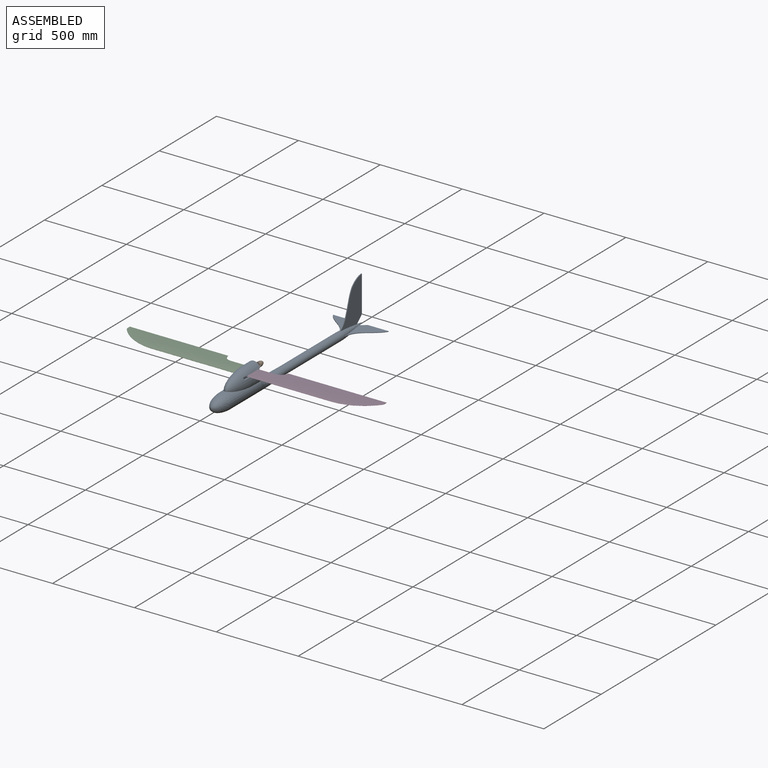
[diagram: assembled view]
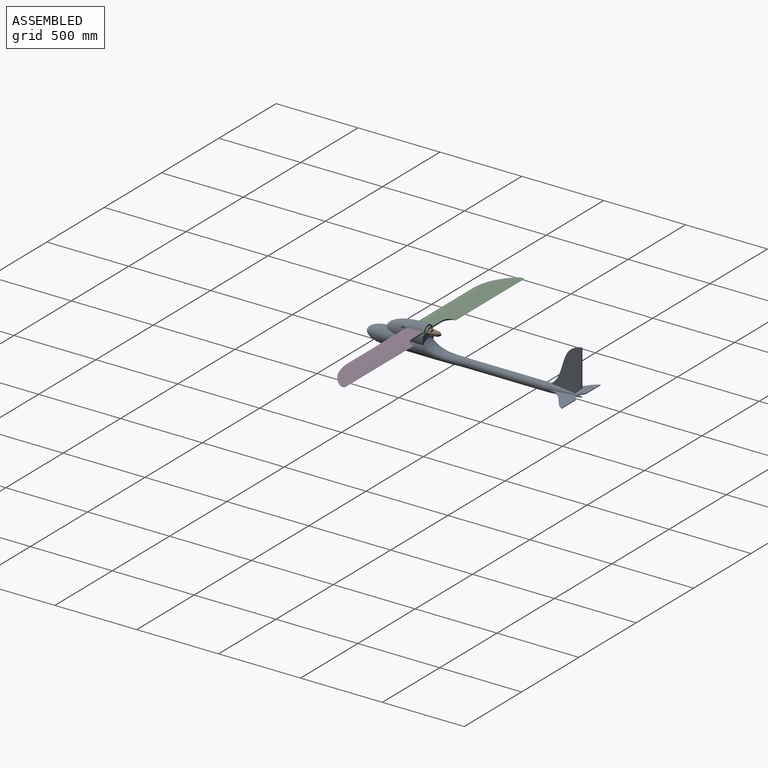
[diagram: assembled view, second angle]
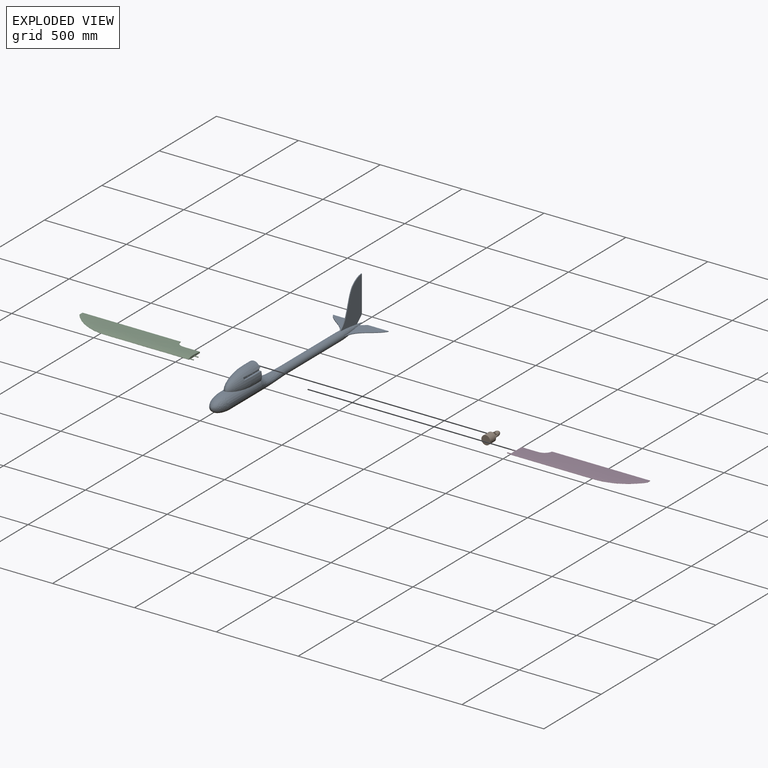
[diagram: exploded view]
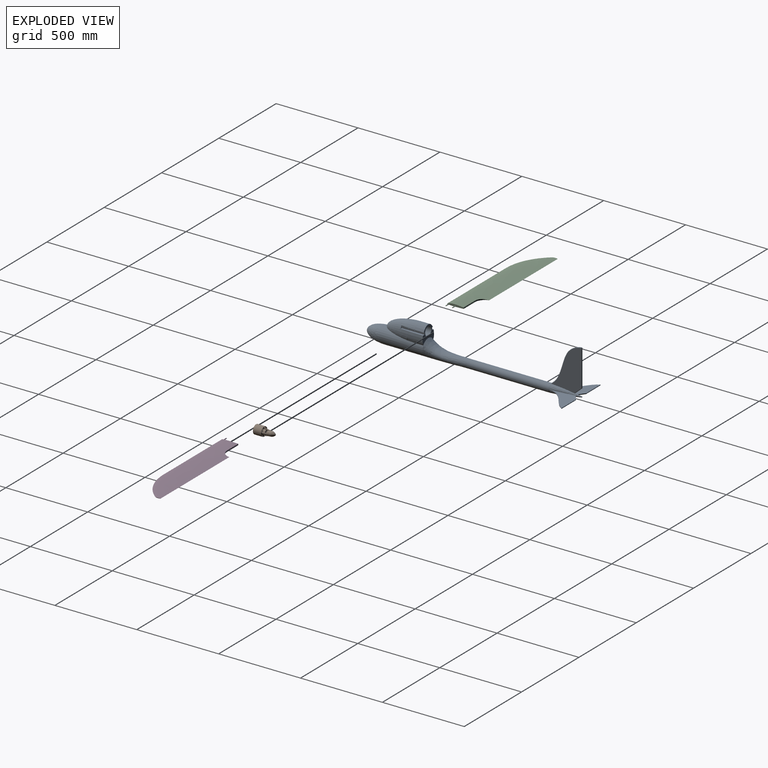
[diagram: exploded view, second angle]
ASSEMBLY  parts=4 mates=4
PART A: 50 faces, bbox 342.7x1315.6x302.5 mm
  f0: bspline ~188.33x49.97mm, area 17044.4mm2, adj f6,f10,f11,f12,f13,f14,f15,f16
  f1: extruded ~50x30mm, area 1519.5mm2, adj f3,f20,f22,f36
  f2: extruded ~80x50mm, area 5265.6mm2, adj f3,f4,f20,f31,f35
  f3: plane 103.03x103.03mm, normal (0,1,0), area 4074.6mm2, adj f1,f2,f21,f22,f23,f26,f27,f28
  f4: bspline ~200x75mm, area 14664.9mm2, adj f2,f20,f21,f25,f30,f31,f32,f33
  f5: plane 1.61x1.61mm, normal (0,1,0), area 2mm2, adj f6
  f6: bspline ~5.56x5.56mm, area 35.2mm2, adj f0,f5
  f7: cylinder r=2.5mm len=222.05mm, axis (0,0,-1), area 1744mm2, adj f8,f9,f13,f14
  f8: sphere r=2.5mm, area 17.9mm2, adj f7,f11,f12
  f9: sphere r=2.5mm, area 0mm2, adj f7,f10
  f10: cylinder r=2.5mm len=44.15mm, axis (0,-0.75,-0.66), area 437.9mm2, adj f0,f9,f13,f14,f15,f16
  f11: bspline ~253.16x194.75mm, area 1286.8mm2, adj f0,f8,f12,f13
  f12: bspline ~253.16x194.75mm, area 1286.8mm2, adj f0,f8,f11,f14
  f13: plane 261.99x184.11mm, normal (-1,0,0), area 28330.3mm2, adj f0,f7,f10,f11,f16
  f14: plane 261.99x184.11mm, normal (1,0,0), area 28330.3mm2, adj f0,f7,f10,f12,f15
  f15: plane 4.22x2.07mm, normal (0,0.99,-0.17), area 2.3mm2, adj f0,f10,f14
  f16: plane 4.22x2.08mm, normal (0,0.99,-0.17), area 2.3mm2, adj f0,f10,f13
  f17: cylinder r=50mm len=250mm, axis (0,-1,0), area 62831.9mm2, adj f18,f19,f22,f23,f25,f26,f27
  f18: revolved ~120x99.83mm, area 31513.3mm2, adj f17
  f19: revolved ~200x50mm, area 3509.7mm2, adj f17,f20,f22
  f20: bspline ~200x75mm, area 14664.6mm2, adj f1,f2,f4,f19,f34,f35,f36,f37
  f21: extruded ~50x30mm, area 1519.5mm2, adj f3,f4,f26,f32
  f22: cylinder r=50mm len=50mm, axis (0,-1,0), area 1309mm2, adj f1,f3,f17,f19
  f23: bspline ~250x100mm, area 26035.5mm2, adj f3,f17,f24,f27
  f24: cylinder r=25mm len=500mm, axis (0,-1,0), area 78539.7mm2, adj f0,f23,f27
  f25: revolved ~200x50mm, area 3510.7mm2, adj f4,f17,f26
  f26: cylinder r=50mm len=50mm, axis (0,-1,0), area 1309mm2, adj f3,f17,f21,f25
  f27: bspline ~250x100mm, area 26035.5mm2, adj f3,f17,f23,f24
  f28: cylinder r=27.5mm len=55mm, axis (0,1,0), area 6911.5mm2, adj f3,f29
  f29: plane 55x55mm, normal (0,1,0), area 2375.8mm2, adj f28
  f30: plane 140x15mm, normal (-1,0,0), area 2060.7mm2, adj f3,f4,f31,f32,f33,f38,f39
  f31: plane 139.78x6.73mm, normal (0,0,-1), area 768.4mm2, adj f2,f3,f4,f30
  f32: plane 140x12.54mm, normal (0,0,1), area 1598mm2, adj f3,f4,f21,f30,f33
  f33: plane 14.93x6.73mm, normal (0,1,0), area 55.2mm2, adj f4,f30,f32
  f34: plane 140x15mm, normal (1,0,0), area 2060.7mm2, adj f3,f20,f35,f36,f37,f38,f39
  f35: plane 139.78x6.73mm, normal (0,0,-1), area 768.4mm2, adj f2,f3,f20,f34
  f36: plane 140x12.54mm, normal (0,0,1), area 1598mm2, adj f1,f3,f20,f34,f37
  f37: plane 14.93x6.73mm, normal (0,1,0), area 55.2mm2, adj f20,f34,f36
  f38: cylinder r=2.5mm len=66.6mm, axis (1,0,0), area 1046.2mm2, adj f30,f34
  f39: cylinder r=2.5mm len=66.6mm, axis (1,0,0), area 1046.2mm2, adj f30,f34
  f40: plane 36.43x27.24mm, normal (0.6,0.8,0), area 179.3mm2, adj f0,f41,f43,f44
  f41: plane 125.92x4mm, normal (0,1,0), area 503.7mm2, adj f40,f42,f43,f44
  f42: extruded ~174x145.44mm, area 934mm2, adj f0,f41,f43,f44
  f43: plane 181.74x162.02mm, normal (0,0,1), area 11427.8mm2, adj f0,f40,f41,f42
  f44: plane 181.74x162.02mm, normal (0,0,-1), area 11427.8mm2, adj f0,f40,f41,f42
  f45: plane 36.27x27.07mm, normal (-0.6,0.8,0), area 179.3mm2, adj f0,f46,f48,f49
  f46: plane 125.92x4mm, normal (0,1,0), area 503.7mm2, adj f45,f47,f48,f49
  f47: extruded ~174x145.44mm, area 934mm2, adj f0,f46,f48,f49
  f48: plane 181.74x162.02mm, normal (0,0,1), area 11427.8mm2, adj f0,f45,f46,f47
  f49: plane 181.9x162.18mm, normal (0,0,-1), area 11427.8mm2, adj f0,f45,f46,f47
PART B: 70 faces, bbox 55.3x120.3x55.3 mm
  f0: plane 25.43x25.43mm, normal (0,-1,0), area 151.9mm2, adj f4,f11,f27,f36,f65,f66,f67,f68
  f1: plane 25.43x25.43mm, normal (0,-1,0), area 151.9mm2, adj f5,f11,f28,f45,f60,f61,f62,f63
  f2: plane 25.43x25.43mm, normal (0,-1,0), area 151.9mm2, adj f11,f14,f21,f44,f55,f56,f57,f58
  f3: cylinder r=15mm len=14.42mm, axis (0,1,0), area 281.8mm2, adj f6,f12,f20,f37
  f4: cylinder r=15mm len=14.42mm, axis (0,1,0), area 281.8mm2, adj f0,f6,f27,f36
  f5: cylinder r=15mm len=14.42mm, axis (0,1,0), area 281.8mm2, adj f1,f6,f28,f45
  f6: plane 29.73x29.73mm, normal (0,-1,0), area 594.5mm2, adj f3,f4,f5,f14,f15,f19,f20,f21
  f7: plane 29.73x29.73mm, normal (0,1,0), area 594.5mm2, adj f8,f9,f10,f15,f16,f19,f20,f21
  f8: cylinder r=15mm len=20mm, axis (0,1,0), area 391mm2, adj f7,f17,f20,f37
  f9: cylinder r=15mm len=20mm, axis (0,1,0), area 391mm2, adj f7,f17,f27,f36
  f10: cylinder r=15mm len=20mm, axis (0,1,0), area 391mm2, adj f7,f17,f28,f45
  f11: cylinder r=27.5mm len=55mm, axis (0,1,0), area 8639.4mm2, adj f0,f1,f2,f12,f13,f18,f24,f32
  f12: plane 25.43x25.43mm, normal (0,-1,0), area 151.9mm2, adj f3,f11,f20,f37,f50,f51,f52,f53
  f13: plane 55x55mm, normal (0,1,0), area 2375.8mm2, adj f11
  f14: cylinder r=15mm len=14.42mm, axis (0,1,0), area 281.8mm2, adj f2,f6,f21,f44
  f15: cylinder r=3.95mm len=10mm, axis (0,1,0), area 248.3mm2, adj f6,f7
  f16: cylinder r=15mm len=20mm, axis (0,1,0), area 391mm2, adj f7,f17,f21,f44
  f17: revolved ~30x30mm, area 1879.4mm2, adj f8,f9,f10,f16,f22,f23,f30,f31
  f18: plane 2x0.07mm, normal (0,1,0), area 0mm2, adj f11,f20,f25
  f19: plane 10x4mm, normal (-1,0,0), area 40mm2, adj f6,f7,f20,f21
  f20: plane 44.68x16.5mm, normal (0,0,1), area 220.4mm2, adj f3,f6,f7,f8,f12,f18,f19,f22
  f21: plane 44.42x16.5mm, normal (0,0,-1), area 220.4mm2, adj f2,f6,f7,f14,f16,f19,f23,f24
  f22: plane 2x0.13mm, normal (0,-1,0), area 0.1mm2, adj f17,f20,f25
  f23: plane 2x0.13mm, normal (0,-1,0), area 0.1mm2, adj f17,f21,f25
  f24: plane 2x0.07mm, normal (0,1,0), area 0mm2, adj f11,f21,f25
  f25: extruded ~44.42x12.5mm, area 188.9mm2, adj f18,f20,f21,f22,f23,f24
  f26: extruded ~44.42x12.5mm, area 188.9mm2, adj f27,f28,f30,f31,f32,f33
  f27: plane 44.42x16.5mm, normal (0,0,1), area 220.4mm2, adj f0,f4,f6,f7,f9,f26,f29,f30
  f28: plane 44.68x16.5mm, normal (0,0,-1), area 220.4mm2, adj f1,f5,f6,f7,f10,f26,f29,f31
  f29: plane 10x4mm, normal (1,0,0), area 40mm2, adj f6,f7,f27,f28
  f30: plane 2x0.13mm, normal (0,-1,0), area 0.1mm2, adj f17,f26,f27
  f31: plane 2x0.13mm, normal (0,-1,0), area 0.1mm2, adj f17,f26,f28
  f32: plane 2x0.07mm, normal (0,1,0), area 0mm2, adj f11,f26,f28
  f33: plane 2x0.07mm, normal (0,1,0), area 0mm2, adj f11,f26,f27
  f34: extruded ~44.42x12.5mm, area 188.9mm2, adj f36,f37,f38,f39,f40,f41
  f35: plane 10x4mm, normal (0,0,-1), area 40mm2, adj f6,f7,f36,f37
  f36: plane 44.68x16.5mm, normal (-1,0,0), area 220.4mm2, adj f0,f4,f6,f7,f9,f34,f35,f39
  f37: plane 44.42x16.5mm, normal (1,0,0), area 220.4mm2, adj f3,f6,f7,f8,f12,f34,f35,f38
  f38: plane 2x0.13mm, normal (0,-1,0), area 0.1mm2, adj f17,f34,f37
  f39: plane 2x0.13mm, normal (0,-1,0), area 0.1mm2, adj f17,f34,f36
  f40: plane 2x0.07mm, normal (0,1,0), area 0mm2, adj f11,f34,f36
  f41: plane 2x0.07mm, normal (0,1,0), area 0mm2, adj f11,f34,f37
  f42: plane 2x0.07mm, normal (0,1,0), area 0mm2, adj f11,f44,f49
  f43: plane 10x4mm, normal (0,0,1), area 40mm2, adj f6,f7,f44,f45
  f44: plane 44.68x16.5mm, normal (1,0,0), area 220.4mm2, adj f2,f6,f7,f14,f16,f42,f43,f46
  f45: plane 44.42x16.5mm, normal (-1,0,0), area 220.4mm2, adj f1,f5,f6,f7,f10,f43,f47,f48
  f46: plane 2x0.13mm, normal (0,-1,0), area 0.1mm2, adj f17,f44,f49
  f47: plane 2x0.13mm, normal (0,-1,0), area 0.1mm2, adj f17,f45,f49
  f48: plane 2x0.07mm, normal (0,1,0), area 0mm2, adj f11,f45,f49
  f49: extruded ~44.42x12.5mm, area 188.9mm2, adj f42,f44,f45,f46,f47,f48
  f50: plane 8.94x5.28mm, normal (0.77,-0.64,0), area 29.1mm2, adj f12,f51,f53,f54
  f51: cone r=17mm half-angle=40deg, axis (0,1,0), area 116mm2, adj f12,f50,f52,f54
  f52: plane 8.94x5.28mm, normal (0,-0.64,0.77), area 29.1mm2, adj f12,f51,f53,f54
  f53: cone r=25.5mm half-angle=40deg, axis (0,-1,0), area 159.2mm2, adj f12,f50,f52,f54
  f54: plane 11.47x11.47mm, normal (0,-1,0), area 1.8mm2, adj f50,f51,f52,f53
  f55: cone r=25.5mm half-angle=40deg, axis (0,-1,0), area 159.2mm2, adj f2,f56,f58,f59
  f56: plane 8.94x5.28mm, normal (0,-0.64,-0.77), area 29.1mm2, adj f2,f55,f57,f59
  f57: cone r=17mm half-angle=40deg, axis (0,1,0), area 116mm2, adj f2,f56,f58,f59
  f58: plane 8.94x5.28mm, normal (0.77,-0.64,0), area 29.1mm2, adj f2,f55,f57,f59
  f59: plane 11.47x11.47mm, normal (0,-1,0), area 1.8mm2, adj f55,f56,f57,f58
  f60: cone r=25.5mm half-angle=40deg, axis (0,-1,0), area 159.2mm2, adj f1,f61,f63,f64
  f61: plane 8.94x5.28mm, normal (-0.77,-0.64,0), area 29.1mm2, adj f1,f60,f62,f64
  f62: cone r=17mm half-angle=40deg, axis (0,1,0), area 116mm2, adj f1,f61,f63,f64
  f63: plane 8.94x5.28mm, normal (0,-0.64,-0.77), area 29.1mm2, adj f1,f60,f62,f64
  f64: plane 11.47x11.47mm, normal (0,-1,0), area 1.8mm2, adj f60,f61,f62,f63
  f65: cone r=25.5mm half-angle=40deg, axis (0,-1,0), area 159.2mm2, adj f0,f66,f68,f69
  f66: plane 8.94x5.28mm, normal (0,-0.64,0.77), area 29.1mm2, adj f0,f65,f67,f69
  f67: cone r=17mm half-angle=40deg, axis (0,1,0), area 116mm2, adj f0,f66,f68,f69
  f68: plane 8.94x5.28mm, normal (-0.77,-0.64,0), area 29.1mm2, adj f0,f65,f67,f69
  f69: plane 11.47x11.47mm, normal (0,-1,0), area 1.8mm2, adj f65,f66,f67,f68
PART C: 12 faces, bbox 775x152.3x16.8 mm
  f0: extruded ~510x150mm, area 70412.9mm2, adj f1,f2,f5,f10,f11
  f1: extruded ~510x150mm, area 70402.4mm2, adj f0,f2,f4,f10,f11
  f2: plane 106.3x16.78mm, normal (-1,0,0), area 1043.2mm2, adj f0,f1,f6,f8,f11
  f3: plane 30.01x3.01mm, normal (1,0,0), area 70.7mm2, adj f4,f5
  f4: bspline ~240x150mm, area 27596.6mm2, adj f1,f3,f5
  f5: bspline ~240x150.61mm, area 27588.4mm2, adj f0,f3,f4
  f6: cylinder r=2.5mm len=25mm, axis (1,0,0), area 392.7mm2, adj f2,f7
  f7: plane 5x5mm, normal (-1,0,0), area 19.6mm2, adj f6
  f8: cylinder r=2.5mm len=25mm, axis (1,0,0), area 392.7mm2, adj f2,f9
  f9: plane 5x5mm, normal (-1,0,0), area 19.6mm2, adj f8
  f10: cylinder r=50mm len=50mm, axis (0,0,1), area 403.8mm2, adj f0,f1,f11
  f11: plane 100x7.97mm, normal (0,-1,0), area 797.2mm2, adj f0,f1,f2,f10
PART D: same geometry as C
PLACE A t=(-434.35,125.67,167.06)mm
PLACE B rot(axis=(1,0,0),180deg) t=(-434.35,-164.33,279.56)mm
PLACE C rot(axis=(0,0,1),180deg) t=(-467.65,-84.33,279.56)mm
PLACE D rot(axis=(1,0,0),180deg) t=(-401.05,-84.33,279.56)mm
MATE fastened C.f6 <-> A.f38  axis (-1,0,0) through (-467.65,-224.33,279.56)mm
MATE fastened D.f6 <-> A.f38  axis (1,0,0) through (-401.05,-224.33,279.56)mm
MATE cylindrical B.f3 <-> A.f28  axis (0,-1,0) through (-434.35,-164.33,279.56)mm
MATE fastened A.f28 <-> B.f3  axis (0,1,0) through (-434.35,-164.33,279.56)mm
